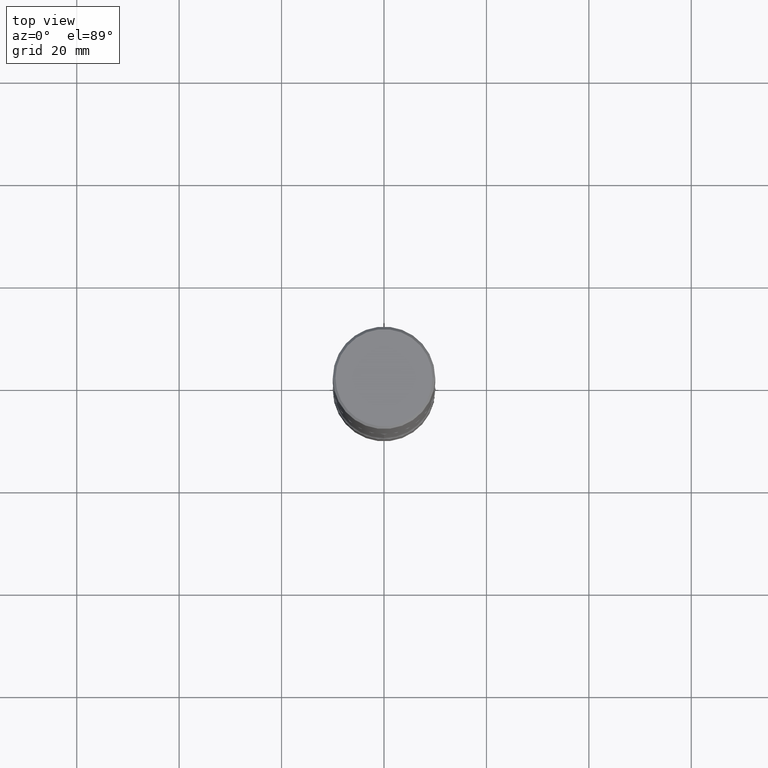
[diagram: clean part render]
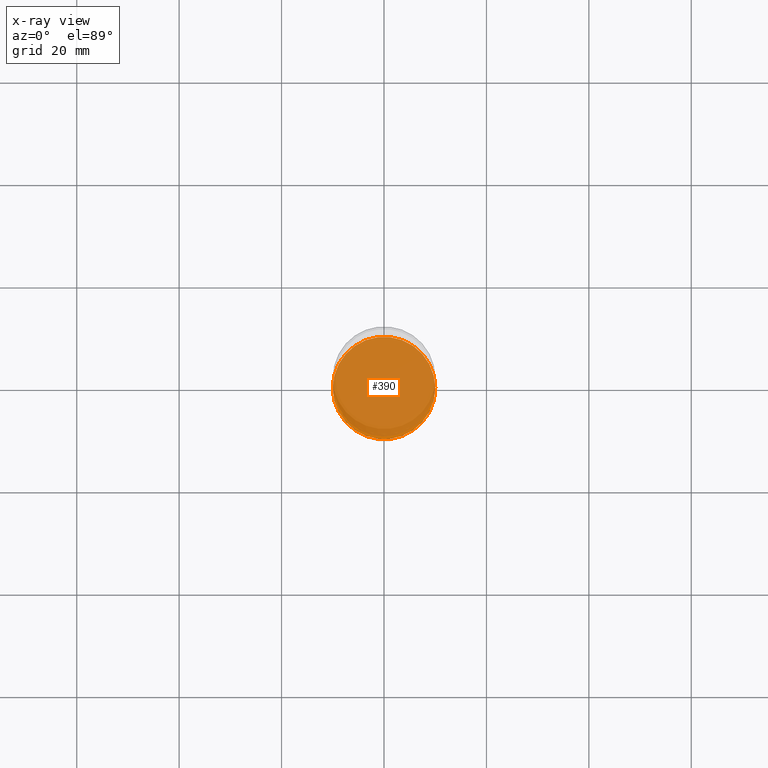
[diagram: x-ray — body ghosted, one internal face saturated and labeled with its STEP entity id]
A machine part, top view, then the same camera in x-ray: the body is ghosted and one INTERNAL B-rep face — a face not visible from any outside direction — is saturated and labeled: STEP entity #390.
In plain terms, the highlighted planar face has unit normal (0, -0, -1).
Its self-contained STEP definition (entity closure, byte-faithful):
#18 = CIRCLE ( 'NONE', #337, 0.3937000000000003830 ) ;
#22 = DIRECTION ( 'NONE',  ( -2.445468806185136597E-29, 3.491481338843145583E-15, 1.000000000000000000 ) ) ;
#31 = VERTEX_POINT ( 'NONE', #397 ) ;
#38 = DIRECTION ( 'NONE',  ( 1.000000000000000000, -6.982962677686261977E-15, 0.000000000000000000 ) ) ;
#51 = CARTESIAN_POINT ( 'NONE',  ( 1.116821149096690103E-28, -1.594524612636276117E-14, -4.566900000000000404 ) ) ;
#89 = FACE_OUTER_BOUND ( 'NONE', #141, .T. ) ;
#103 = DIRECTION ( 'NONE',  ( -1.000000000000000000, 6.982962677686265922E-15, -4.876176775795935793E-29 ) ) ;
#141 = EDGE_LOOP ( 'NONE', ( #470, #233 ) ) ;
#160 = CIRCLE ( 'NONE', #263, 0.3937000000000003830 ) ;
#185 = DIRECTION ( 'NONE',  ( 1.000000000000000000, -6.982962677686261977E-15, 0.000000000000000000 ) ) ;
#201 = DIRECTION ( 'NONE',  ( -2.445468806185136597E-29, 3.491481338843145583E-15, 1.000000000000000000 ) ) ;
#206 = CARTESIAN_POINT ( 'NONE',  ( 1.116821149096690103E-28, -1.594524612636276117E-14, -4.566900000000000404 ) ) ;
#228 = AXIS2_PLACEMENT_3D ( 'NONE', #51, #445, #103 ) ;
#233 = ORIENTED_EDGE ( 'NONE', *, *, #284, .T. ) ;
#260 = PLANE ( 'NONE',  #228 ) ;
#263 = AXIS2_PLACEMENT_3D ( 'NONE', #206, #201, #38 ) ;
#284 = EDGE_CURVE ( 'NONE', #31, #333, #18, .T. ) ;
#326 = CARTESIAN_POINT ( 'NONE',  ( 1.116821149096690103E-28, -1.594524612636276117E-14, -4.566900000000000404 ) ) ;
#333 = VERTEX_POINT ( 'NONE', #524 ) ;
#337 = AXIS2_PLACEMENT_3D ( 'NONE', #326, #22, #185 ) ;
#390 = ADVANCED_FACE ( 'NONE', ( #89 ), #260, .F. ) ;
#397 = CARTESIAN_POINT ( 'NONE',  ( -0.3937000000000003830, -1.472860755183648137E-14, -4.566900000000000404 ) ) ;
#445 = DIRECTION ( 'NONE',  ( 2.438088387897960049E-29, -3.491481338843145188E-15, -1.000000000000000000 ) ) ;
#470 = ORIENTED_EDGE ( 'NONE', *, *, #535, .T. ) ;
#524 = CARTESIAN_POINT ( 'NONE',  ( 0.3937000000000003830, -1.869443853256784755E-14, -4.566900000000000404 ) ) ;
#535 = EDGE_CURVE ( 'NONE', #333, #31, #160, .T. ) ;